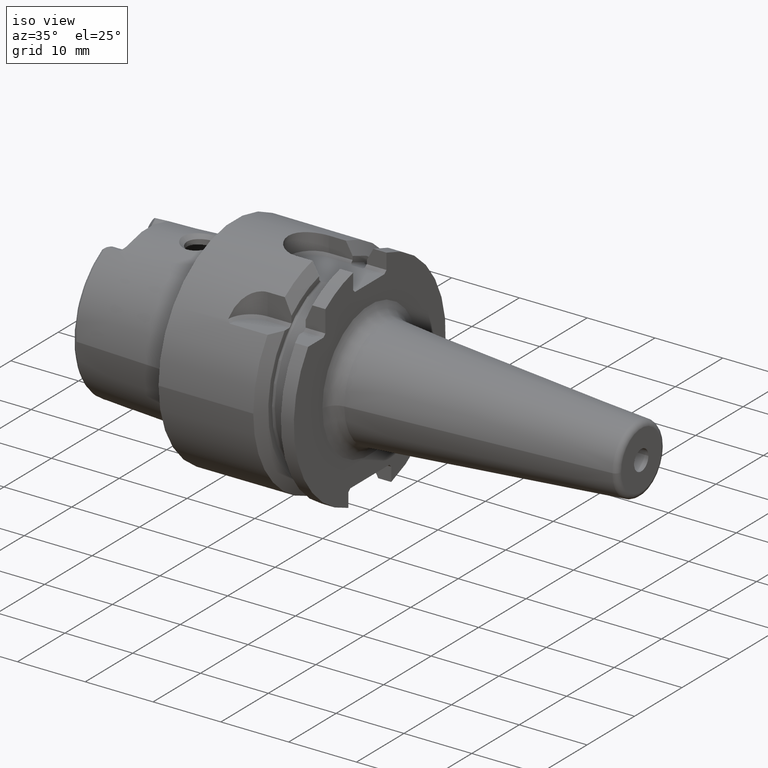
[diagram: clean part render]
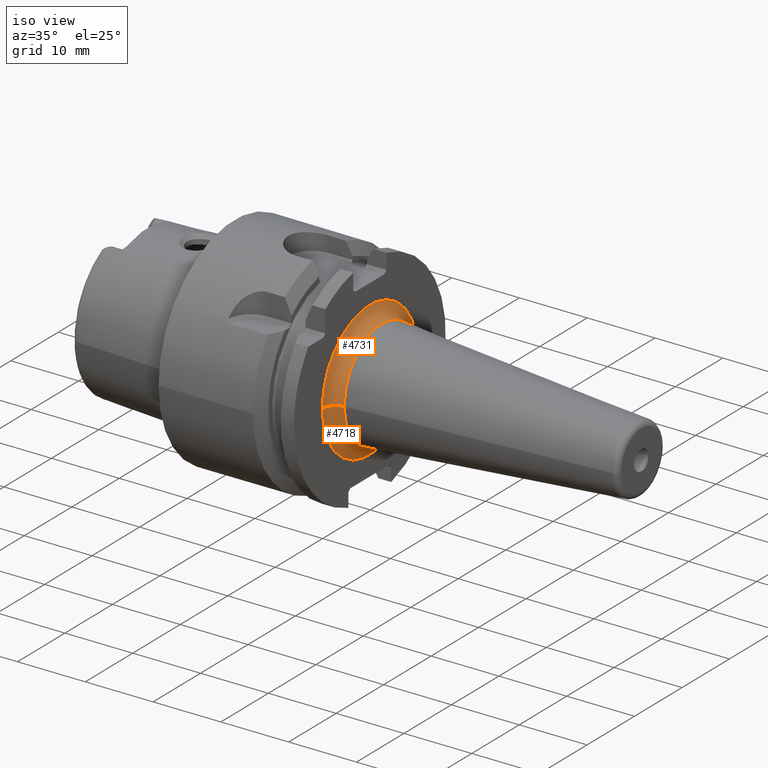
[diagram: same view with one multi-face feature highlighted, each face labeled with its STEP entity id]
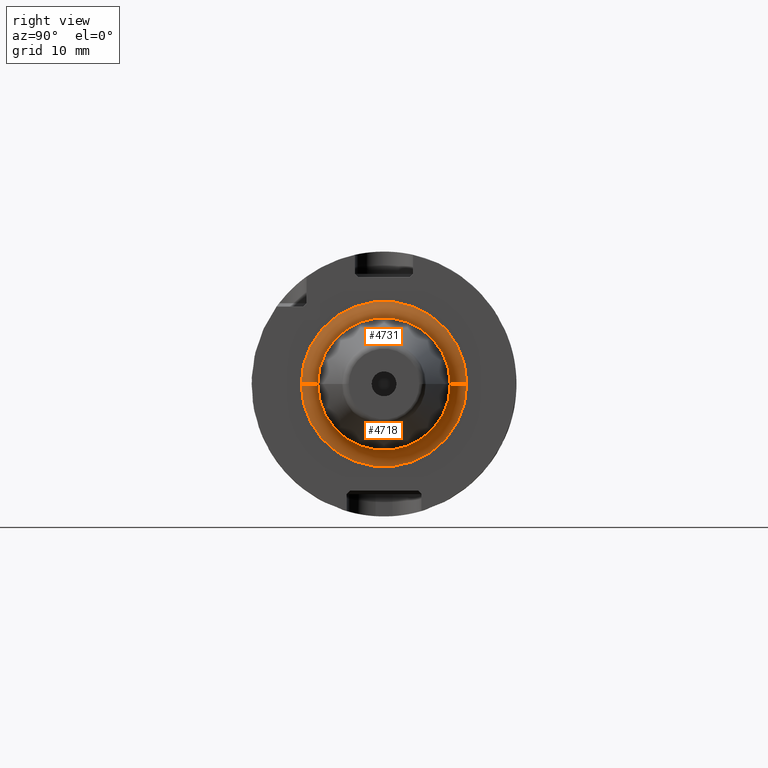
[diagram: same view with one multi-face feature highlighted, each face labeled with its STEP entity id]
A machine part, iso view. The highlighted faces form ONE feature: a constant-radius fillet chain: 2 tangent blend faces with common blend radius 2 mm. The faces share edges in the B-rep.
A second angle (right view) of the same feature is appended — it is thin or edge-on in the first view.
Their STEP definitions:
[1] entity #4718 (Torus):
#1405=CARTESIAN_POINT('',(1.995E1,0.E0,0.E0));
#1406=DIRECTION('',(1.E0,0.E0,0.E0));
#1407=DIRECTION('',(0.E0,-1.E0,0.E0));
#1408=AXIS2_PLACEMENT_3D('',#1405,#1406,#1407);
#1595=CARTESIAN_POINT('',(2.195E1,-1.000078434164E1,1.299585439263E-12));
#1596=DIRECTION('',(0.E0,-1.299481355854E-13,-1.E0));
#1597=DIRECTION('',(-1.E0,8.348877145181E-14,0.E0));
#1598=AXIS2_PLACEMENT_3D('',#1595,#1596,#1597);
#1600=CARTESIAN_POINT('',(2.195E1,1.000078434164E1,-1.300834440165E-12));
#1601=DIRECTION('',(0.E0,1.300730356757E-13,1.E0));
#1602=DIRECTION('',(-1.E0,-8.437694987151E-14,0.E0));
#1603=AXIS2_PLACEMENT_3D('',#1600,#1601,#1602);
#1634=CARTESIAN_POINT('',(2.179308180854E1,0.E0,0.E0));
#1635=DIRECTION('',(1.E0,0.E0,0.E0));
#1636=DIRECTION('',(0.E0,-1.E0,0.E0));
#1637=AXIS2_PLACEMENT_3D('',#1634,#1635,#1636);
#3075=CARTESIAN_POINT('',(1.995E1,-1.000078434164E1,0.E0));
#3076=CARTESIAN_POINT('',(1.995E1,1.000078434164E1,0.E0));
#3077=VERTEX_POINT('',#3075);
#3078=VERTEX_POINT('',#3076);
#3079=CARTESIAN_POINT('',(2.179308180854E1,-8.006949674176E0,0.E0));
#3080=CARTESIAN_POINT('',(2.179308180854E1,8.006949674176E0,0.E0));
#3081=VERTEX_POINT('',#3079);
#3082=VERTEX_POINT('',#3080);
#4704=CARTESIAN_POINT('',(2.195E1,0.E0,0.E0));
#4705=DIRECTION('',(1.E0,0.E0,0.E0));
#4706=DIRECTION('',(0.E0,-9.999316539899E-1,1.169133649465E-2));
#4707=AXIS2_PLACEMENT_3D('',#4704,#4705,#4706);
#4708=TOROIDAL_SURFACE('',#4707,1.000078434164E1,2.E0);
#4709=ORIENTED_EDGE('',*,*,#4457,.F.);
#4711=ORIENTED_EDGE('',*,*,#4710,.T.);
#4713=ORIENTED_EDGE('',*,*,#4712,.T.);
#4715=ORIENTED_EDGE('',*,*,#4714,.F.);
#4716=EDGE_LOOP('',(#4709,#4711,#4713,#4715));
#4717=FACE_OUTER_BOUND('',#4716,.F.);
#4718=ADVANCED_FACE('',(#4717),#4708,.F.);
#1409=CIRCLE('',#1408,1.000078434164E1);
#1599=CIRCLE('',#1598,2.E0);
#1604=CIRCLE('',#1603,2.E0);
#1638=CIRCLE('',#1637,8.006949674176E0);
#4457=EDGE_CURVE('',#3077,#3078,#1409,.T.);
#4710=EDGE_CURVE('',#3077,#3081,#1599,.T.);
#4712=EDGE_CURVE('',#3081,#3082,#1638,.T.);
#4714=EDGE_CURVE('',#3078,#3082,#1604,.T.);
[2] entity #4731 (Torus):
#1410=CARTESIAN_POINT('',(1.995E1,0.E0,0.E0));
#1411=DIRECTION('',(1.E0,0.E0,0.E0));
#1412=DIRECTION('',(0.E0,1.E0,0.E0));
#1413=AXIS2_PLACEMENT_3D('',#1410,#1411,#1412);
#1595=CARTESIAN_POINT('',(2.195E1,-1.000078434164E1,1.299585439263E-12));
#1596=DIRECTION('',(0.E0,-1.299481355854E-13,-1.E0));
#1597=DIRECTION('',(-1.E0,8.348877145181E-14,0.E0));
#1598=AXIS2_PLACEMENT_3D('',#1595,#1596,#1597);
#1600=CARTESIAN_POINT('',(2.195E1,1.000078434164E1,-1.300834440165E-12));
#1601=DIRECTION('',(0.E0,1.300730356757E-13,1.E0));
#1602=DIRECTION('',(-1.E0,-8.437694987151E-14,0.E0));
#1603=AXIS2_PLACEMENT_3D('',#1600,#1601,#1602);
#1610=CARTESIAN_POINT('',(2.179308180854E1,0.E0,0.E0));
#1611=DIRECTION('',(1.E0,0.E0,0.E0));
#1612=DIRECTION('',(0.E0,1.E0,0.E0));
#1613=AXIS2_PLACEMENT_3D('',#1610,#1611,#1612);
#3075=CARTESIAN_POINT('',(1.995E1,-1.000078434164E1,0.E0));
#3076=CARTESIAN_POINT('',(1.995E1,1.000078434164E1,0.E0));
#3077=VERTEX_POINT('',#3075);
#3078=VERTEX_POINT('',#3076);
#3079=CARTESIAN_POINT('',(2.179308180854E1,-8.006949674176E0,0.E0));
#3080=CARTESIAN_POINT('',(2.179308180854E1,8.006949674176E0,0.E0));
#3081=VERTEX_POINT('',#3079);
#3082=VERTEX_POINT('',#3080);
#4719=CARTESIAN_POINT('',(2.195E1,0.E0,0.E0));
#4720=DIRECTION('',(1.E0,0.E0,0.E0));
#4721=DIRECTION('',(0.E0,9.999316539899E-1,-1.169133649465E-2));
#4722=AXIS2_PLACEMENT_3D('',#4719,#4720,#4721);
#4723=TOROIDAL_SURFACE('',#4722,1.000078434164E1,2.E0);
#4724=ORIENTED_EDGE('',*,*,#4459,.F.);
#4725=ORIENTED_EDGE('',*,*,#4714,.T.);
#4727=ORIENTED_EDGE('',*,*,#4726,.T.);
#4728=ORIENTED_EDGE('',*,*,#4710,.F.);
#4729=EDGE_LOOP('',(#4724,#4725,#4727,#4728));
#4730=FACE_OUTER_BOUND('',#4729,.F.);
#4731=ADVANCED_FACE('',(#4730),#4723,.F.);
#1414=CIRCLE('',#1413,1.000078434164E1);
#1599=CIRCLE('',#1598,2.E0);
#1604=CIRCLE('',#1603,2.E0);
#1614=CIRCLE('',#1613,8.006949674176E0);
#4459=EDGE_CURVE('',#3078,#3077,#1414,.T.);
#4710=EDGE_CURVE('',#3077,#3081,#1599,.T.);
#4714=EDGE_CURVE('',#3078,#3082,#1604,.T.);
#4726=EDGE_CURVE('',#3082,#3081,#1614,.T.);